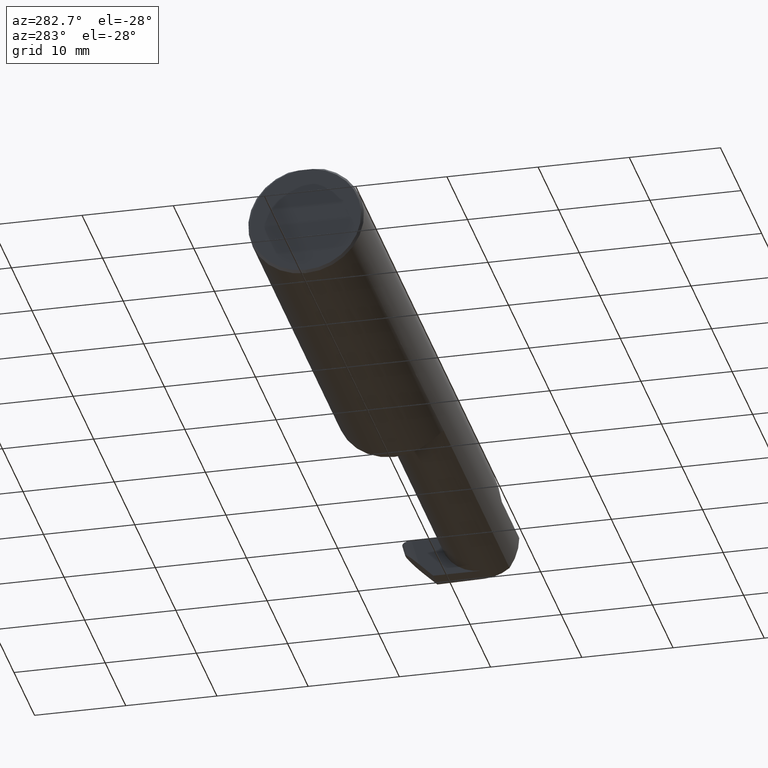
[diagram: clean part render]
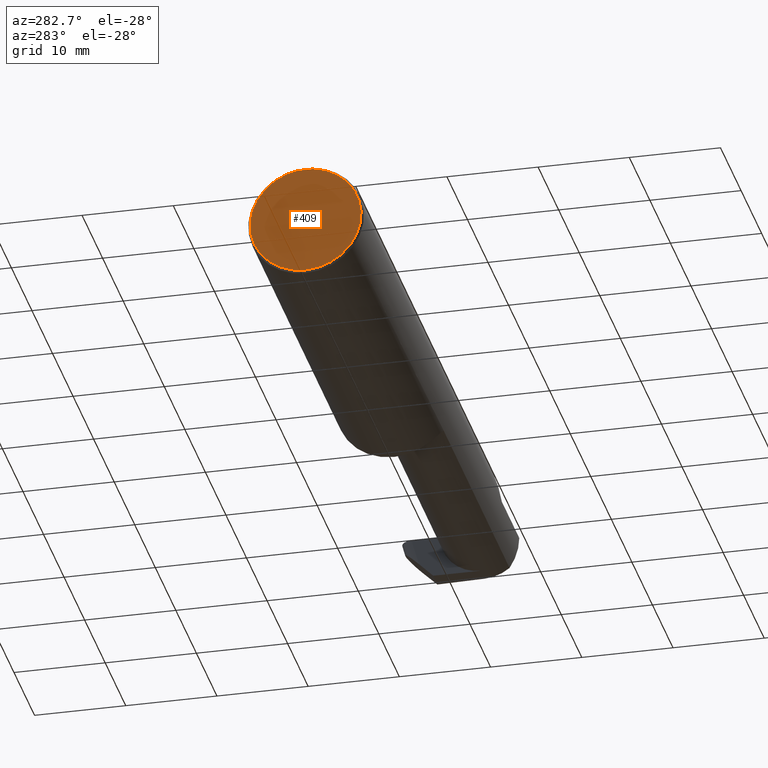
[diagram: same view with one face highlighted and labeled with its STEP entity id]
A machine part, auxiliary view. The second image highlights one B-rep face of the part: STEP entity #409.
In plain terms, the highlighted planar face has unit normal (1, 0, 0).
Its self-contained STEP definition (entity closure, byte-faithful):
#12 = EDGE_CURVE ( 'NONE', #59, #184, #541, .T. ) ;
#38 = DIRECTION ( 'NONE',  ( 1.000000000000000000, 0.000000000000000000, 0.000000000000000000 ) ) ;
#59 = VERTEX_POINT ( 'NONE', #482 ) ;
#63 = CARTESIAN_POINT ( 'NONE',  ( 0.000000000000000000, 0.03090954545120574992, 0.2378499999999998671 ) ) ;
#74 = CARTESIAN_POINT ( 'NONE',  ( 0.000000000000000000, 0.000000000000000000, 0.000000000000000000 ) ) ;
#79 = ORIENTED_EDGE ( 'NONE', *, *, #265, .T. ) ;
#100 = PLANE ( 'NONE',  #400 ) ;
#120 = AXIS2_PLACEMENT_3D ( 'NONE', #183, #579, #129 ) ;
#129 = DIRECTION ( 'NONE',  ( 0.000000000000000000, 0.000000000000000000, -1.000000000000000000 ) ) ;
#151 = CARTESIAN_POINT ( 'NONE',  ( 0.000000000000000000, 0.000000000000000000, 0.000000000000000000 ) ) ;
#183 = CARTESIAN_POINT ( 'NONE',  ( 0.000000000000000000, 0.000000000000000000, 0.000000000000000000 ) ) ;
#184 = VERTEX_POINT ( 'NONE', #63 ) ;
#227 = VERTEX_POINT ( 'NONE', #305 ) ;
#265 = EDGE_CURVE ( 'NONE', #227, #59, #335, .T. ) ;
#270 = EDGE_CURVE ( 'NONE', #184, #227, #519, .T. ) ;
#295 = DIRECTION ( 'NONE',  ( 0.000000000000000000, 0.000000000000000000, -1.000000000000000000 ) ) ;
#305 = CARTESIAN_POINT ( 'NONE',  ( 0.000000000000000000, 0.000000000000000000, -0.2398500000000001742 ) ) ;
#317 = DIRECTION ( 'NONE',  ( -0.000000000000000000, 1.000000000000000000, -0.000000000000000000 ) ) ;
#324 = VECTOR ( 'NONE', #317, 39.37007874015748143 ) ;
#335 = CIRCLE ( 'NONE', #120, 0.2398500000000001742 ) ;
#347 = DIRECTION ( 'NONE',  ( -1.000000000000000000, -0.000000000000000000, -0.000000000000000000 ) ) ;
#367 = CARTESIAN_POINT ( 'NONE',  ( 0.000000000000000000, 0.2498499999999998500, 0.2378499999999998671 ) ) ;
#400 = AXIS2_PLACEMENT_3D ( 'NONE', #151, #38, #531 ) ;
#409 = ADVANCED_FACE ( 'NONE', ( #478 ), #100, .F. ) ;
#439 = ORIENTED_EDGE ( 'NONE', *, *, #12, .T. ) ;
#455 = ORIENTED_EDGE ( 'NONE', *, *, #270, .T. ) ;
#478 = FACE_OUTER_BOUND ( 'NONE', #505, .T. ) ;
#482 = CARTESIAN_POINT ( 'NONE',  ( 0.000000000000000000, -0.03090954545120560767, 0.2378499999999998671 ) ) ;
#505 = EDGE_LOOP ( 'NONE', ( #439, #455, #79 ) ) ;
#519 = CIRCLE ( 'NONE', #691, 0.2398500000000001742 ) ;
#531 = DIRECTION ( 'NONE',  ( 0.000000000000000000, 0.000000000000000000, -1.000000000000000000 ) ) ;
#541 = LINE ( 'NONE', #367, #324 ) ;
#579 = DIRECTION ( 'NONE',  ( -1.000000000000000000, -0.000000000000000000, -0.000000000000000000 ) ) ;
#691 = AXIS2_PLACEMENT_3D ( 'NONE', #74, #347, #295 ) ;